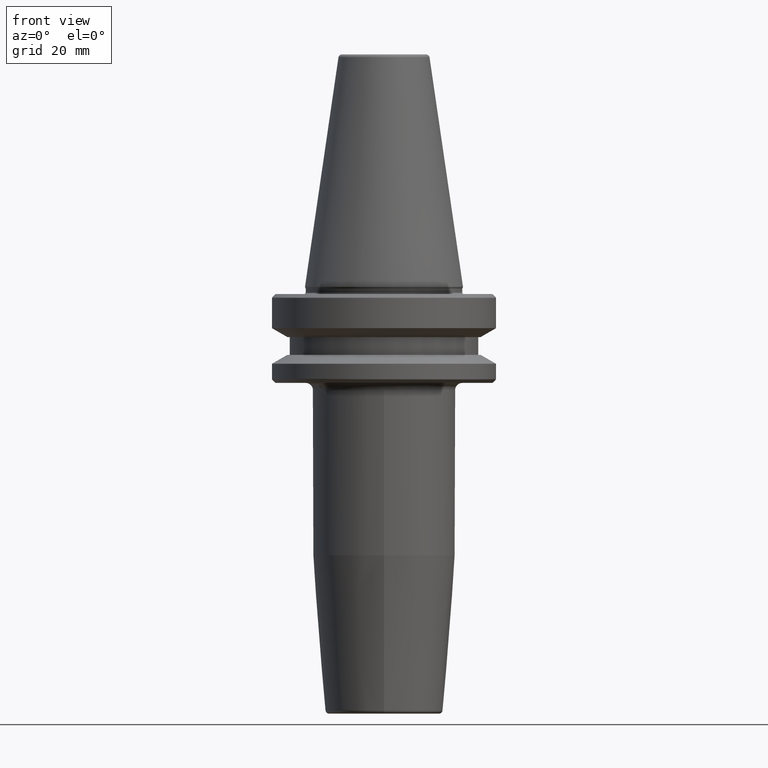
[diagram: clean part render]
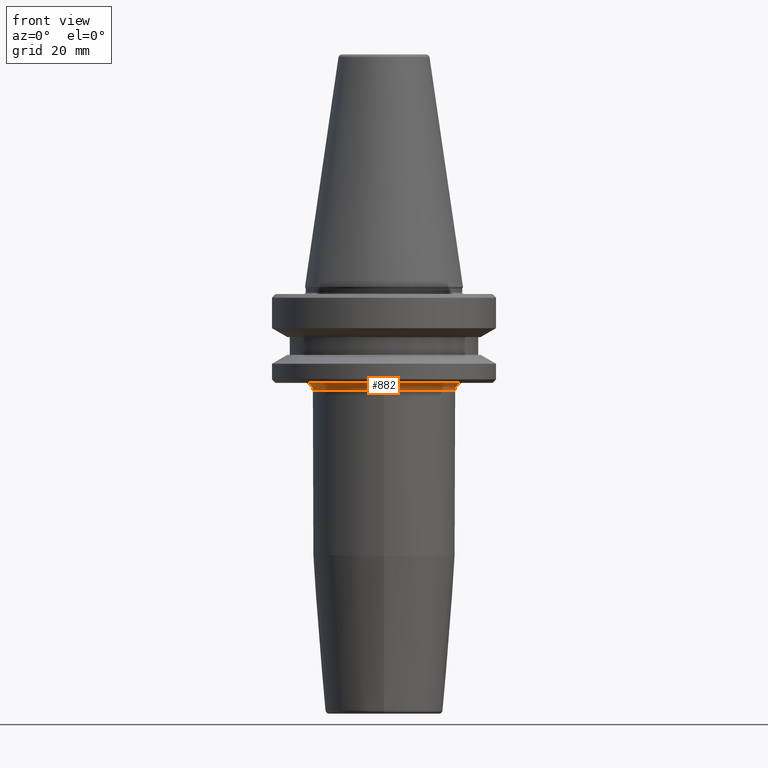
[diagram: same view with one face highlighted and labeled with its STEP entity id]
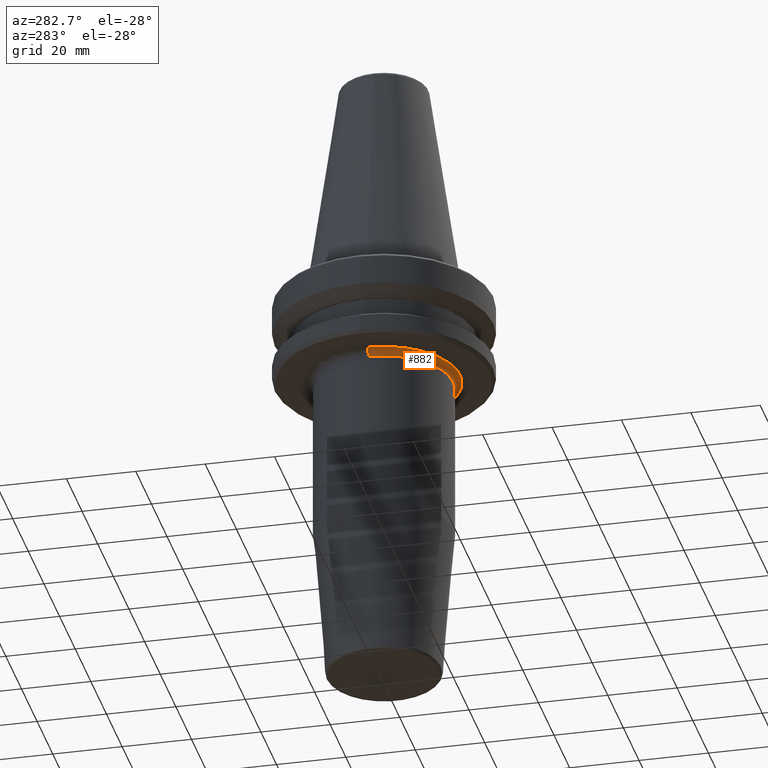
[diagram: same view with one face highlighted and labeled with its STEP entity id]
A machine part, front view. The second image highlights one B-rep face of the part: STEP entity #882.
A second angle (auxiliary view) of the same face is appended — the face is thin or edge-on in the first view.
In plain terms, the highlighted toroidal blend (fillet) surface has major radius 22 mm and minor (blend) radius 2 mm.
Its self-contained STEP definition (entity closure, byte-faithful):
#6 = DIRECTION ( 'NONE',  ( 0.0000000000000000000, 0.0000000000000000000, -1.000000000000000000 ) ) ;
#80 = CARTESIAN_POINT ( 'NONE',  ( 22.00000000000000000, 2.804836217402001700E-015, -28.99999999999999600 ) ) ;
#82 = ORIENTED_EDGE ( 'NONE', *, *, #316, .F. ) ;
#140 = CIRCLE ( 'NONE', #1186, 22.00000000000000000 ) ;
#181 = EDGE_CURVE ( 'NONE', #1235, #332, #140, .T. ) ;
#232 = CARTESIAN_POINT ( 'NONE',  ( 0.0000000000000000000, 1.106132592778247800E-016, -28.99999999999999600 ) ) ;
#306 = DIRECTION ( 'NONE',  ( -0.0000000000000000000, -0.0000000000000000000, 1.000000000000000000 ) ) ;
#316 = EDGE_CURVE ( 'NONE', #556, #419, #737, .T. ) ;
#332 = VERTEX_POINT ( 'NONE', #536 ) ;
#369 = CARTESIAN_POINT ( 'NONE',  ( -22.00000000000000000, 1.106132592778247800E-016, -28.99999999999999600 ) ) ;
#398 = EDGE_LOOP ( 'NONE', ( #82, #1141, #973, #1061, #1055 ) ) ;
#414 = DIRECTION ( 'NONE',  ( -1.000000000000000000, 0.0000000000000000000, 0.0000000000000000000 ) ) ;
#419 = VERTEX_POINT ( 'NONE', #976 ) ;
#429 = CARTESIAN_POINT ( 'NONE',  ( 0.0000000000000000000, 1.106132592778247800E-016, -28.99999999999999600 ) ) ;
#536 = CARTESIAN_POINT ( 'NONE',  ( 22.00000000000000000, 2.804836217402001700E-015, -27.00000000000000000 ) ) ;
#545 = AXIS2_PLACEMENT_3D ( 'NONE', #80, #1252, #1136 ) ;
#556 = VERTEX_POINT ( 'NONE', #869 ) ;
#570 = AXIS2_PLACEMENT_3D ( 'NONE', #369, #1168, #751 ) ;
#606 = EDGE_CURVE ( 'NONE', #419, #1192, #988, .T. ) ;
#630 = AXIS2_PLACEMENT_3D ( 'NONE', #429, #838, #1135 ) ;
#716 = EDGE_CURVE ( 'NONE', #1192, #1235, #857, .T. ) ;
#737 = CIRCLE ( 'NONE', #630, 19.99999999999999600 ) ;
#751 = DIRECTION ( 'NONE',  ( 0.0000000000000000000, 0.0000000000000000000, -1.000000000000000000 ) ) ;
#798 = DIRECTION ( 'NONE',  ( -1.000000000000000000, 0.0000000000000000000, 0.0000000000000000000 ) ) ;
#823 = AXIS2_PLACEMENT_3D ( 'NONE', #1204, #6, #414 ) ;
#828 = DIRECTION ( 'NONE',  ( -1.000000000000000000, 0.0000000000000000000, 0.0000000000000000000 ) ) ;
#838 = DIRECTION ( 'NONE',  ( 0.0000000000000000000, 0.0000000000000000000, -1.000000000000000000 ) ) ;
#847 = EDGE_CURVE ( 'NONE', #556, #332, #1262, .T. ) ;
#857 = CIRCLE ( 'NONE', #570, 2.000000000000001800 ) ;
#867 = AXIS2_PLACEMENT_3D ( 'NONE', #232, #933, #828 ) ;
#869 = CARTESIAN_POINT ( 'NONE',  ( 19.99999999999999600, 2.682371537487266200E-015, -28.99999999999999600 ) ) ;
#882 = ADVANCED_FACE ( 'NONE', ( #1007 ), #1234, .F. ) ;
#933 = DIRECTION ( 'NONE',  ( 0.0000000000000000000, 0.0000000000000000000, -1.000000000000000000 ) ) ;
#973 = ORIENTED_EDGE ( 'NONE', *, *, #181, .F. ) ;
#976 = CARTESIAN_POINT ( 'NONE',  ( 2.449293598294706100E-015, -19.99999999999999600, -28.99999999999999600 ) ) ;
#988 = CIRCLE ( 'NONE', #867, 19.99999999999999600 ) ;
#1007 = FACE_OUTER_BOUND ( 'NONE', #398, .T. ) ;
#1055 = ORIENTED_EDGE ( 'NONE', *, *, #606, .F. ) ;
#1061 = ORIENTED_EDGE ( 'NONE', *, *, #716, .F. ) ;
#1105 = CARTESIAN_POINT ( 'NONE',  ( 0.0000000000000000000, 1.106132592778247800E-016, -27.00000000000000400 ) ) ;
#1135 = DIRECTION ( 'NONE',  ( -1.000000000000000000, 0.0000000000000000000, 0.0000000000000000000 ) ) ;
#1136 = DIRECTION ( 'NONE',  ( -1.000000000000000000, -1.224646799147351500E-016, 0.0000000000000000000 ) ) ;
#1141 = ORIENTED_EDGE ( 'NONE', *, *, #847, .T. ) ;
#1168 = DIRECTION ( 'NONE',  ( -0.0000000000000000000, -1.000000000000000000, -0.0000000000000000000 ) ) ;
#1186 = AXIS2_PLACEMENT_3D ( 'NONE', #1105, #306, #798 ) ;
#1192 = VERTEX_POINT ( 'NONE', #1267 ) ;
#1204 = CARTESIAN_POINT ( 'NONE',  ( 0.0000000000000000000, 1.106132592778247800E-016, -28.99999999999999600 ) ) ;
#1234 = TOROIDAL_SURFACE ( 'NONE', #823, 22.00000000000000000, 2.000000000000000000 ) ;
#1235 = VERTEX_POINT ( 'NONE', #1276 ) ;
#1252 = DIRECTION ( 'NONE',  ( -1.224646799147353200E-016, 1.000000000000000000, 0.0000000000000000000 ) ) ;
#1262 = CIRCLE ( 'NONE', #545, 2.000000000000001800 ) ;
#1267 = CARTESIAN_POINT ( 'NONE',  ( -19.99999999999999600, 1.106132592778247800E-016, -28.99999999999999600 ) ) ;
#1276 = CARTESIAN_POINT ( 'NONE',  ( -22.00000000000000000, 1.106132592778247800E-016, -27.00000000000000000 ) ) ;